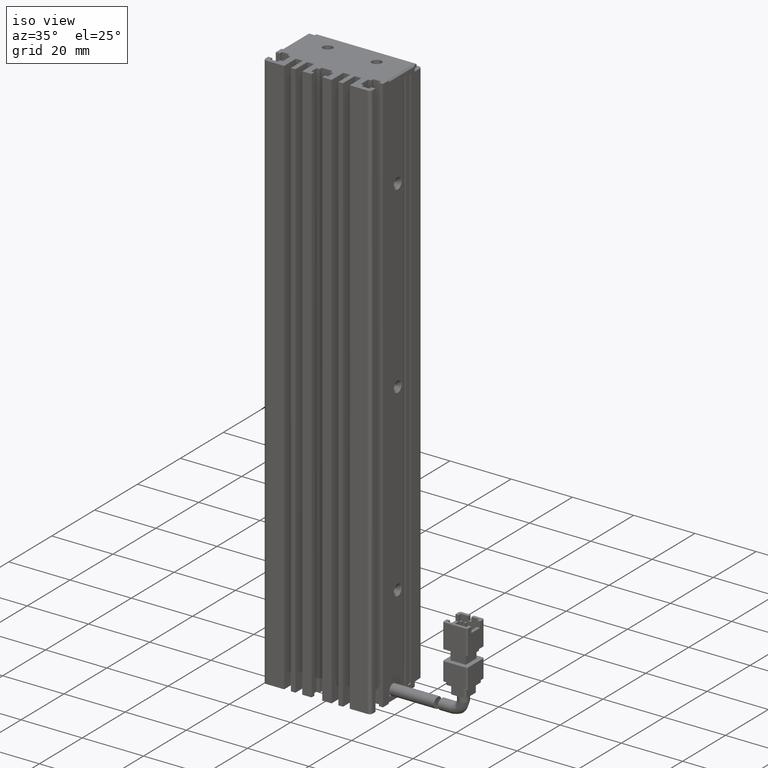
[diagram: clean part render]
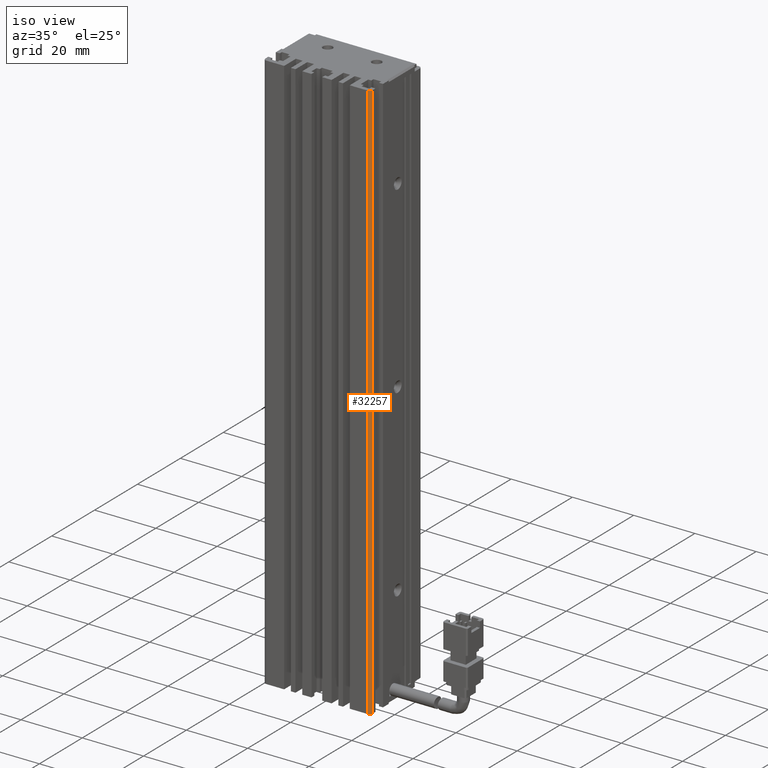
[diagram: same view with one face highlighted and labeled with its STEP entity id]
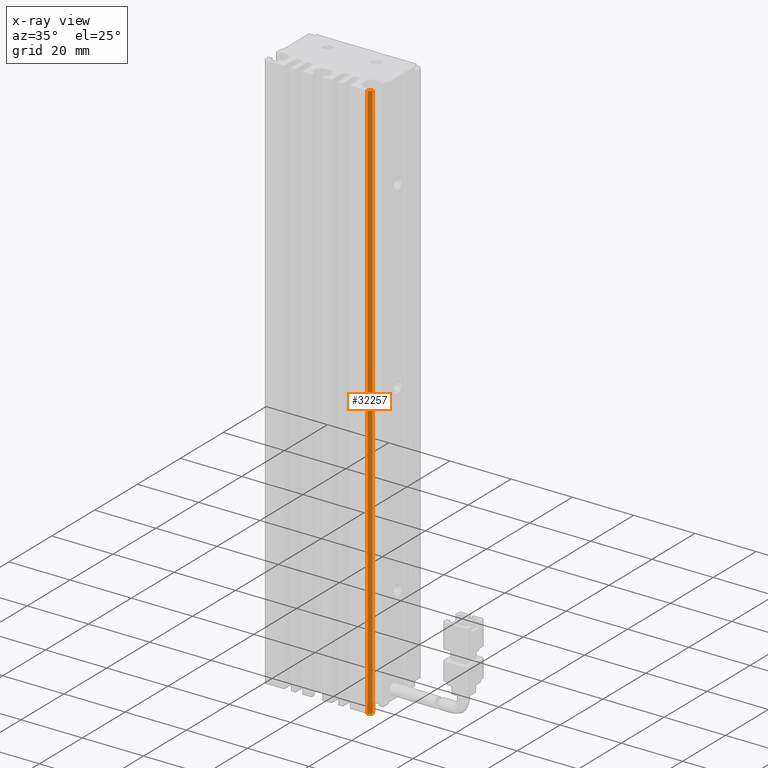
[diagram: x-ray of the same camera — body ghosted, the highlighted face saturated]
A machine part, iso view. The second image highlights one B-rep face of the part: STEP entity #32257.
The next image is the same camera in x-ray: the body ghosted, the highlighted face saturated — about 0% of this face is hidden behind the body in this view.
In plain terms, the highlighted cylindrical surface (edge-blend (fillet) strip) has radius 1 mm, axis along (-0, -0, -1).
Its self-contained STEP definition (entity closure, byte-faithful):
#1621 = DIRECTION ( 'NONE',  ( 0.0000000000000000000, 0.0000000000000000000, 1.000000000000000000 ) ) ;
#4004 = ORIENTED_EDGE ( 'NONE', *, *, #25196, .T. ) ;
#6165 = CARTESIAN_POINT ( 'NONE',  ( 57.42537974683542500, 11.99073232304837700, -23.00000000000000700 ) ) ;
#6384 = VERTEX_POINT ( 'NONE', #53057 ) ;
#6577 = CARTESIAN_POINT ( 'NONE',  ( 57.42537974683542500, 10.99073232304837500, -23.00000000000000700 ) ) ;
#8041 = CARTESIAN_POINT ( 'NONE',  ( 58.42537974683542500, 11.99073232304837500, -23.00000000000000700 ) ) ;
#11592 = CYLINDRICAL_SURFACE ( 'NONE', #78818, 1.000000000000000900 ) ;
#18906 = DIRECTION ( 'NONE',  ( -1.000000000000000000, 0.0000000000000000000, 0.0000000000000000000 ) ) ;
#20449 = DIRECTION ( 'NONE',  ( -1.000000000000000000, 0.0000000000000000000, 0.0000000000000000000 ) ) ;
#25196 = EDGE_CURVE ( 'NONE', #73630, #6384, #72711, .T. ) ;
#25433 = DIRECTION ( 'NONE',  ( -0.0000000000000000000, -0.0000000000000000000, -1.000000000000000000 ) ) ;
#26840 = ORIENTED_EDGE ( 'NONE', *, *, #73798, .T. ) ;
#27298 = CIRCLE ( 'NONE', #53288, 1.000000000000000900 ) ;
#27593 = ORIENTED_EDGE ( 'NONE', *, *, #63486, .T. ) ;
#28239 = CARTESIAN_POINT ( 'NONE',  ( 58.42537974683542500, 11.99073232304837700, -23.00000000000000700 ) ) ;
#30083 = AXIS2_PLACEMENT_3D ( 'NONE', #68417, #1621, #20449 ) ;
#31803 = VECTOR ( 'NONE', #25433, 1000.000000000000000 ) ;
#32257 = ADVANCED_FACE ( 'NONE', ( #42078 ), #11592, .T. ) ;
#32556 = DIRECTION ( 'NONE',  ( -1.000000000000000000, 0.0000000000000000000, 0.0000000000000000000 ) ) ;
#34693 = CARTESIAN_POINT ( 'NONE',  ( 58.42537974683542500, 11.99073232304837500, -207.0000000000000300 ) ) ;
#37047 = CARTESIAN_POINT ( 'NONE',  ( 57.42537974683542500, 10.99073232304837200, -23.00000000000000700 ) ) ;
#42078 = FACE_OUTER_BOUND ( 'NONE', #64972, .T. ) ;
#45827 = CARTESIAN_POINT ( 'NONE',  ( 57.42537974683542500, 11.99073232304837700, -23.00000000000000700 ) ) ;
#49021 = DIRECTION ( 'NONE',  ( -0.0000000000000000000, -0.0000000000000000000, -1.000000000000000000 ) ) ;
#52533 = ORIENTED_EDGE ( 'NONE', *, *, #71318, .T. ) ;
#52744 = DIRECTION ( 'NONE',  ( 0.0000000000000000000, 0.0000000000000000000, 1.000000000000000000 ) ) ;
#53057 = CARTESIAN_POINT ( 'NONE',  ( 57.42537974683542500, 10.99073232304837200, -207.0000000000000300 ) ) ;
#53288 = AXIS2_PLACEMENT_3D ( 'NONE', #6165, #49021, #18906 ) ;
#53778 = VERTEX_POINT ( 'NONE', #8041 ) ;
#55847 = VERTEX_POINT ( 'NONE', #34693 ) ;
#63486 = EDGE_CURVE ( 'NONE', #55847, #53778, #66587, .T. ) ;
#64972 = EDGE_LOOP ( 'NONE', ( #52533, #4004, #26840, #27593 ) ) ;
#66587 = LINE ( 'NONE', #28239, #76944 ) ;
#68417 = CARTESIAN_POINT ( 'NONE',  ( 57.42537974683542500, 11.99073232304837700, -207.0000000000000300 ) ) ;
#71318 = EDGE_CURVE ( 'NONE', #53778, #73630, #27298, .T. ) ;
#72711 = LINE ( 'NONE', #6577, #31803 ) ;
#73630 = VERTEX_POINT ( 'NONE', #37047 ) ;
#73798 = EDGE_CURVE ( 'NONE', #6384, #55847, #76977, .T. ) ;
#75354 = DIRECTION ( 'NONE',  ( -0.0000000000000000000, -0.0000000000000000000, -1.000000000000000000 ) ) ;
#76944 = VECTOR ( 'NONE', #52744, 1000.000000000000000 ) ;
#76977 = CIRCLE ( 'NONE', #30083, 1.000000000000000900 ) ;
#78818 = AXIS2_PLACEMENT_3D ( 'NONE', #45827, #75354, #32556 ) ;